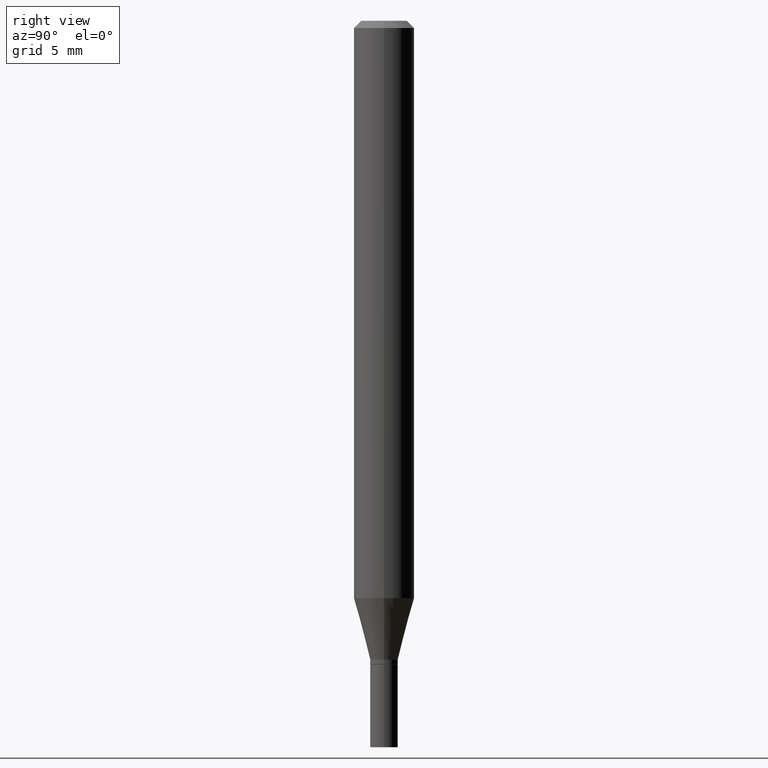
[diagram: clean part render]
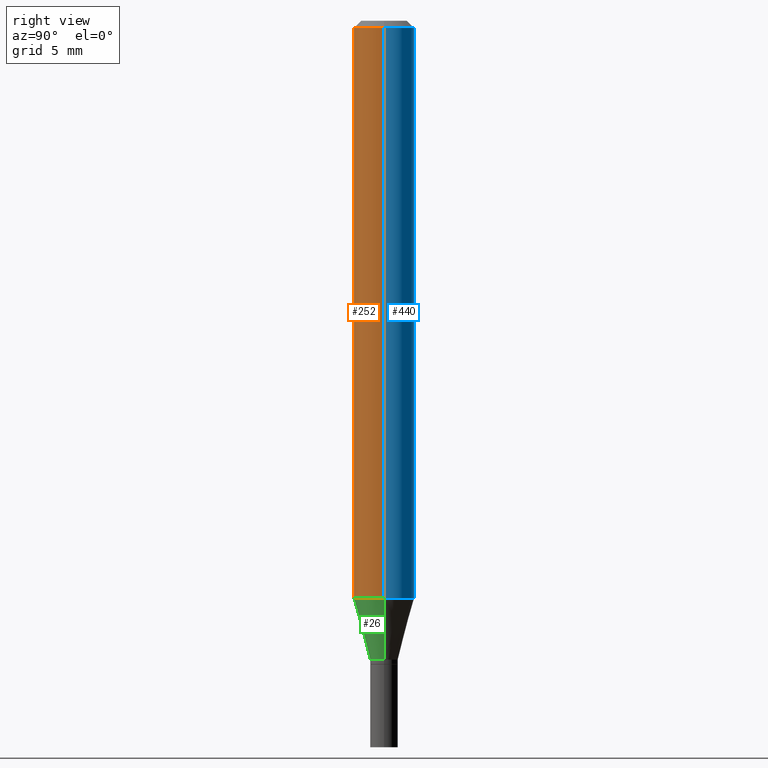
[diagram: same view with three faces highlighted in distinct colors, each labeled with its STEP entity id]
A machine part, right view with three faces highlighted in distinct colors.
Their STEP definitions:

[orange] entity #252 — the highlighted cylindrical surface (edge-blend (fillet) strip) has radius 1.5875 mm, axis along (-0, 0, 1).
#23 = CARTESIAN_POINT ( 'NONE',  ( 0.06250000000000000000, -4.888073874380388472E-16, -0.01499999999999999944 ) ) ;
#25 = DIRECTION ( 'NONE',  ( -2.445468806185136597E-29, 3.491481338843145583E-15, 1.000000000000000000 ) ) ;
#40 = EDGE_LOOP ( 'NONE', ( #76, #71, #102, #372 ) ) ;
#59 = FACE_OUTER_BOUND ( 'NONE', #40, .T. ) ;
#71 = ORIENTED_EDGE ( 'NONE', *, *, #230, .T. ) ;
#75 = VECTOR ( 'NONE', #308, 39.37007874015748143 ) ;
#76 = ORIENTED_EDGE ( 'NONE', *, *, #162, .F. ) ;
#92 = LINE ( 'NONE', #382, #75 ) ;
#94 = DIRECTION ( 'NONE',  ( -2.445468806185136877E-29, 3.491481338843145188E-15, 1.000000000000000000 ) ) ;
#97 = DIRECTION ( 'NONE',  ( 1.000000000000000000, -6.982962677686270655E-15, 0.000000000000000000 ) ) ;
#102 = ORIENTED_EDGE ( 'NONE', *, *, #285, .T. ) ;
#146 = AXIS2_PLACEMENT_3D ( 'NONE', #417, #452, #353 ) ;
#162 = EDGE_CURVE ( 'NONE', #322, #426, #92, .T. ) ;
#163 = LINE ( 'NONE', #272, #402 ) ;
#169 = DIRECTION ( 'NONE',  ( 1.000000000000000000, -6.982962677686266711E-15, 0.000000000000000000 ) ) ;
#176 = VERTEX_POINT ( 'NONE', #23 ) ;
#202 = AXIS2_PLACEMENT_3D ( 'NONE', #307, #25, #169 ) ;
#204 = CYLINDRICAL_SURFACE ( 'NONE', #146, 0.06250000000000000000 ) ;
#230 = EDGE_CURVE ( 'NONE', #322, #324, #264, .T. ) ;
#237 = DIRECTION ( 'NONE',  ( -2.445468806185136597E-29, 3.491481338843145583E-15, 1.000000000000000000 ) ) ;
#251 = CARTESIAN_POINT ( 'NONE',  ( -0.06250000000000000000, -3.718141560575843830E-15, -1.192110272542658223 ) ) ;
#252 = ADVANCED_FACE ( 'NONE', ( #59 ), #204, .T. ) ;
#262 = EDGE_CURVE ( 'NONE', #426, #176, #351, .T. ) ;
#264 = CIRCLE ( 'NONE', #428, 0.06250000000000000000 ) ;
#272 = CARTESIAN_POINT ( 'NONE',  ( 0.06250000000000000000, -4.364351673553916694E-16, 3.047610484872459871E-30 ) ) ;
#274 = CARTESIAN_POINT ( 'NONE',  ( 2.915268485035931806E-29, -4.162230770425907235E-15, -1.192110272542658223 ) ) ;
#285 = EDGE_CURVE ( 'NONE', #324, #176, #163, .T. ) ;
#307 = CARTESIAN_POINT ( 'NONE',  ( 3.668203209277705088E-31, -5.237222008264718399E-17, -0.01499999999999999944 ) ) ;
#308 = DIRECTION ( 'NONE',  ( -2.445468806185136877E-29, 3.491481338843145188E-15, 1.000000000000000000 ) ) ;
#322 = VERTEX_POINT ( 'NONE', #251 ) ;
#324 = VERTEX_POINT ( 'NONE', #460 ) ;
#351 = CIRCLE ( 'NONE', #202, 0.06250000000000000000 ) ;
#353 = DIRECTION ( 'NONE',  ( 1.000000000000000000, -6.982962677686266711E-15, 4.876176775795935793E-29 ) ) ;
#354 = CARTESIAN_POINT ( 'NONE',  ( -0.06250000000000000000, -1.663212285404214738E-15, -0.01499999999999999944 ) ) ;
#372 = ORIENTED_EDGE ( 'NONE', *, *, #262, .F. ) ;
#382 = CARTESIAN_POINT ( 'NONE',  ( -0.06250000000000000000, 4.440892098500626162E-16, -3.074334431409316114E-30 ) ) ;
#402 = VECTOR ( 'NONE', #94, 39.37007874015748143 ) ;
#417 = CARTESIAN_POINT ( 'NONE',  ( 0.000000000000000000, 0.000000000000000000, 0.000000000000000000 ) ) ;
#426 = VERTEX_POINT ( 'NONE', #354 ) ;
#428 = AXIS2_PLACEMENT_3D ( 'NONE', #274, #237, #97 ) ;
#452 = DIRECTION ( 'NONE',  ( -2.445468806185136597E-29, 3.491481338843145583E-15, 1.000000000000000000 ) ) ;
#460 = CARTESIAN_POINT ( 'NONE',  ( 0.06250000000000000000, -4.598665937781298116E-15, -1.192110272542658223 ) ) ;

[blue] entity #440 — the highlighted cylindrical surface (edge-blend (fillet) strip) has radius 1.5875 mm, axis along (-0, 0, 1).
#23 = CARTESIAN_POINT ( 'NONE',  ( 0.06250000000000000000, -4.888073874380388472E-16, -0.01499999999999999944 ) ) ;
#75 = VECTOR ( 'NONE', #308, 39.37007874015748143 ) ;
#92 = LINE ( 'NONE', #382, #75 ) ;
#94 = DIRECTION ( 'NONE',  ( -2.445468806185136877E-29, 3.491481338843145188E-15, 1.000000000000000000 ) ) ;
#107 = CIRCLE ( 'NONE', #189, 0.06250000000000000000 ) ;
#116 = EDGE_CURVE ( 'NONE', #176, #426, #161, .T. ) ;
#117 = DIRECTION ( 'NONE',  ( 1.000000000000000000, -6.982962677686266711E-15, 4.876176775795935793E-29 ) ) ;
#124 = DIRECTION ( 'NONE',  ( -2.445468806185136597E-29, 3.491481338843145583E-15, 1.000000000000000000 ) ) ;
#125 = DIRECTION ( 'NONE',  ( -2.445468806185136597E-29, 3.491481338843145583E-15, 1.000000000000000000 ) ) ;
#149 = CYLINDRICAL_SURFACE ( 'NONE', #310, 0.06250000000000000000 ) ;
#150 = ORIENTED_EDGE ( 'NONE', *, *, #116, .F. ) ;
#161 = CIRCLE ( 'NONE', #289, 0.06250000000000000000 ) ;
#162 = EDGE_CURVE ( 'NONE', #322, #426, #92, .T. ) ;
#163 = LINE ( 'NONE', #272, #402 ) ;
#176 = VERTEX_POINT ( 'NONE', #23 ) ;
#179 = DIRECTION ( 'NONE',  ( 1.000000000000000000, -6.982962677686270655E-15, 0.000000000000000000 ) ) ;
#181 = ORIENTED_EDGE ( 'NONE', *, *, #162, .T. ) ;
#189 = AXIS2_PLACEMENT_3D ( 'NONE', #425, #362, #179 ) ;
#232 = ORIENTED_EDGE ( 'NONE', *, *, #436, .T. ) ;
#251 = CARTESIAN_POINT ( 'NONE',  ( -0.06250000000000000000, -3.718141560575843830E-15, -1.192110272542658223 ) ) ;
#254 = CARTESIAN_POINT ( 'NONE',  ( 0.000000000000000000, 0.000000000000000000, 0.000000000000000000 ) ) ;
#267 = DIRECTION ( 'NONE',  ( 1.000000000000000000, -6.982962677686266711E-15, 0.000000000000000000 ) ) ;
#272 = CARTESIAN_POINT ( 'NONE',  ( 0.06250000000000000000, -4.364351673553916694E-16, 3.047610484872459871E-30 ) ) ;
#285 = EDGE_CURVE ( 'NONE', #324, #176, #163, .T. ) ;
#289 = AXIS2_PLACEMENT_3D ( 'NONE', #450, #125, #267 ) ;
#308 = DIRECTION ( 'NONE',  ( -2.445468806185136877E-29, 3.491481338843145188E-15, 1.000000000000000000 ) ) ;
#310 = AXIS2_PLACEMENT_3D ( 'NONE', #254, #124, #117 ) ;
#322 = VERTEX_POINT ( 'NONE', #251 ) ;
#324 = VERTEX_POINT ( 'NONE', #460 ) ;
#325 = FACE_OUTER_BOUND ( 'NONE', #430, .T. ) ;
#354 = CARTESIAN_POINT ( 'NONE',  ( -0.06250000000000000000, -1.663212285404214738E-15, -0.01499999999999999944 ) ) ;
#362 = DIRECTION ( 'NONE',  ( -2.445468806185136597E-29, 3.491481338843145583E-15, 1.000000000000000000 ) ) ;
#382 = CARTESIAN_POINT ( 'NONE',  ( -0.06250000000000000000, 4.440892098500626162E-16, -3.074334431409316114E-30 ) ) ;
#402 = VECTOR ( 'NONE', #94, 39.37007874015748143 ) ;
#425 = CARTESIAN_POINT ( 'NONE',  ( 2.915268485035931806E-29, -4.162230770425907235E-15, -1.192110272542658223 ) ) ;
#426 = VERTEX_POINT ( 'NONE', #354 ) ;
#430 = EDGE_LOOP ( 'NONE', ( #232, #181, #150, #451 ) ) ;
#436 = EDGE_CURVE ( 'NONE', #324, #322, #107, .T. ) ;
#440 = ADVANCED_FACE ( 'NONE', ( #325 ), #149, .T. ) ;
#450 = CARTESIAN_POINT ( 'NONE',  ( 3.668203209277705088E-31, -5.237222008264718399E-17, -0.01499999999999999944 ) ) ;
#451 = ORIENTED_EDGE ( 'NONE', *, *, #285, .F. ) ;
#460 = CARTESIAN_POINT ( 'NONE',  ( 0.06250000000000000000, -4.598665937781298116E-15, -1.192110272542658223 ) ) ;

[green] entity #26 — the highlighted conical surface has half-angle 15 deg.
#11 = CARTESIAN_POINT ( 'NONE',  ( 0.02849999999999991776, -4.804278322248167148E-15, -1.318999999999999950 ) ) ;
#26 = ADVANCED_FACE ( 'NONE', ( #330 ), #390, .T. ) ;
#29 = VERTEX_POINT ( 'NONE', #11 ) ;
#60 = VECTOR ( 'NONE', #243, 39.37007874015748854 ) ;
#70 = LINE ( 'NONE', #279, #60 ) ;
#83 = EDGE_CURVE ( 'NONE', #356, #29, #409, .T. ) ;
#91 = DIRECTION ( 'NONE',  ( 1.000000000000000000, -6.982962677686268288E-15, 0.000000000000000000 ) ) ;
#93 = AXIS2_PLACEMENT_3D ( 'NONE', #261, #335, #91 ) ;
#97 = DIRECTION ( 'NONE',  ( 1.000000000000000000, -6.982962677686270655E-15, 0.000000000000000000 ) ) ;
#104 = ORIENTED_EDGE ( 'NONE', *, *, #363, .T. ) ;
#106 = AXIS2_PLACEMENT_3D ( 'NONE', #160, #257, #113 ) ;
#113 = DIRECTION ( 'NONE',  ( 1.000000000000000000, -6.982962677686268288E-15, 0.000000000000000000 ) ) ;
#148 = ORIENTED_EDGE ( 'NONE', *, *, #230, .F. ) ;
#157 = ORIENTED_EDGE ( 'NONE', *, *, #338, .F. ) ;
#160 = CARTESIAN_POINT ( 'NONE',  ( 3.225573355358195400E-29, -4.605263885934108641E-15, -1.318999999999999950 ) ) ;
#210 = CARTESIAN_POINT ( 'NONE',  ( -0.02849999999999991776, -4.402759206242480303E-15, -1.318999999999999950 ) ) ;
#214 = EDGE_LOOP ( 'NONE', ( #157, #221, #104, #148 ) ) ;
#221 = ORIENTED_EDGE ( 'NONE', *, *, #83, .T. ) ;
#230 = EDGE_CURVE ( 'NONE', #322, #324, #264, .T. ) ;
#237 = DIRECTION ( 'NONE',  ( -2.445468806185136597E-29, 3.491481338843145583E-15, 1.000000000000000000 ) ) ;
#243 = DIRECTION ( 'NONE',  ( 0.2588190451025211836, 1.565188264969622559E-15, 0.9659258262890679791 ) ) ;
#251 = CARTESIAN_POINT ( 'NONE',  ( -0.06250000000000000000, -3.718141560575843830E-15, -1.192110272542658223 ) ) ;
#257 = DIRECTION ( 'NONE',  ( -2.445468806185136597E-29, 3.491481338843145583E-15, 1.000000000000000000 ) ) ;
#261 = CARTESIAN_POINT ( 'NONE',  ( 3.225573355358195400E-29, -4.605263885934108641E-15, -1.318999999999999950 ) ) ;
#264 = CIRCLE ( 'NONE', #428, 0.06250000000000000000 ) ;
#274 = CARTESIAN_POINT ( 'NONE',  ( 2.915268485035931806E-29, -4.162230770425907235E-15, -1.192110272542658223 ) ) ;
#279 = CARTESIAN_POINT ( 'NONE',  ( 0.02849999999999991776, -4.804278322248167148E-15, -1.318999999999999950 ) ) ;
#292 = LINE ( 'NONE', #210, #422 ) ;
#319 = DIRECTION ( 'NONE',  ( -0.2588190451025211836, 5.211531920934547886E-15, 0.9659258262890679791 ) ) ;
#322 = VERTEX_POINT ( 'NONE', #251 ) ;
#324 = VERTEX_POINT ( 'NONE', #460 ) ;
#330 = FACE_OUTER_BOUND ( 'NONE', #214, .T. ) ;
#335 = DIRECTION ( 'NONE',  ( -2.445468806185136597E-29, 3.491481338843145583E-15, 1.000000000000000000 ) ) ;
#338 = EDGE_CURVE ( 'NONE', #356, #322, #292, .T. ) ;
#356 = VERTEX_POINT ( 'NONE', #399 ) ;
#363 = EDGE_CURVE ( 'NONE', #29, #324, #70, .T. ) ;
#390 = CONICAL_SURFACE ( 'NONE', #93, 0.02849999999999991776, 0.2617993877991499074 ) ;
#399 = CARTESIAN_POINT ( 'NONE',  ( -0.02849999999999991776, -4.060450383409162461E-15, -1.318999999999999950 ) ) ;
#409 = CIRCLE ( 'NONE', #106, 0.02849999999999991776 ) ;
#422 = VECTOR ( 'NONE', #319, 39.37007874015748854 ) ;
#428 = AXIS2_PLACEMENT_3D ( 'NONE', #274, #237, #97 ) ;
#460 = CARTESIAN_POINT ( 'NONE',  ( 0.06250000000000000000, -4.598665937781298116E-15, -1.192110272542658223 ) ) ;